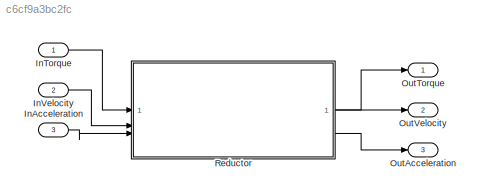
MODEL slx_c6cf9a3bc2fc
KIND model
CONFIG AbsTol = auto
CONFIG EnableMultiTasking = off
CONFIG FixedStep = auto
CONFIG MaxStep = auto
CONFIG MinStep = auto
CONFIG RelTol = 1e-3
CONFIG SampleTimeConstraint = Unconstrained
CONFIG SolverName = VariableStepAuto
CONFIG StartTime = 0.0
CONFIG StopTime = 10.0
BLOCK [Inport] InAcceleration
  Port = 3
BLOCK [Inport] InTorque
BLOCK [Inport] InVelocity
  Port = 2
BLOCK [Outport] OutAcceleration
  Port = 3
BLOCK [Outport] OutTorque
BLOCK [Outport] OutVelocity
  Port = 2
BLOCK [SubSystem] Reductor
  J_gear = 2.4e-6
  ReferencedSubsystem = Reductor
  i_gear = 100
  vis_friction_coef_gear = 3e-3
LINE InAcceleration:1 -> Reductor:3
LINE InTorque:1 -> Reductor:1
LINE InVelocity:1 -> Reductor:2
LINE Reductor:1 -> OutTorque:1
LINE Reductor:2 -> OutVelocity:1
LINE Reductor:3 -> OutAcceleration:1
